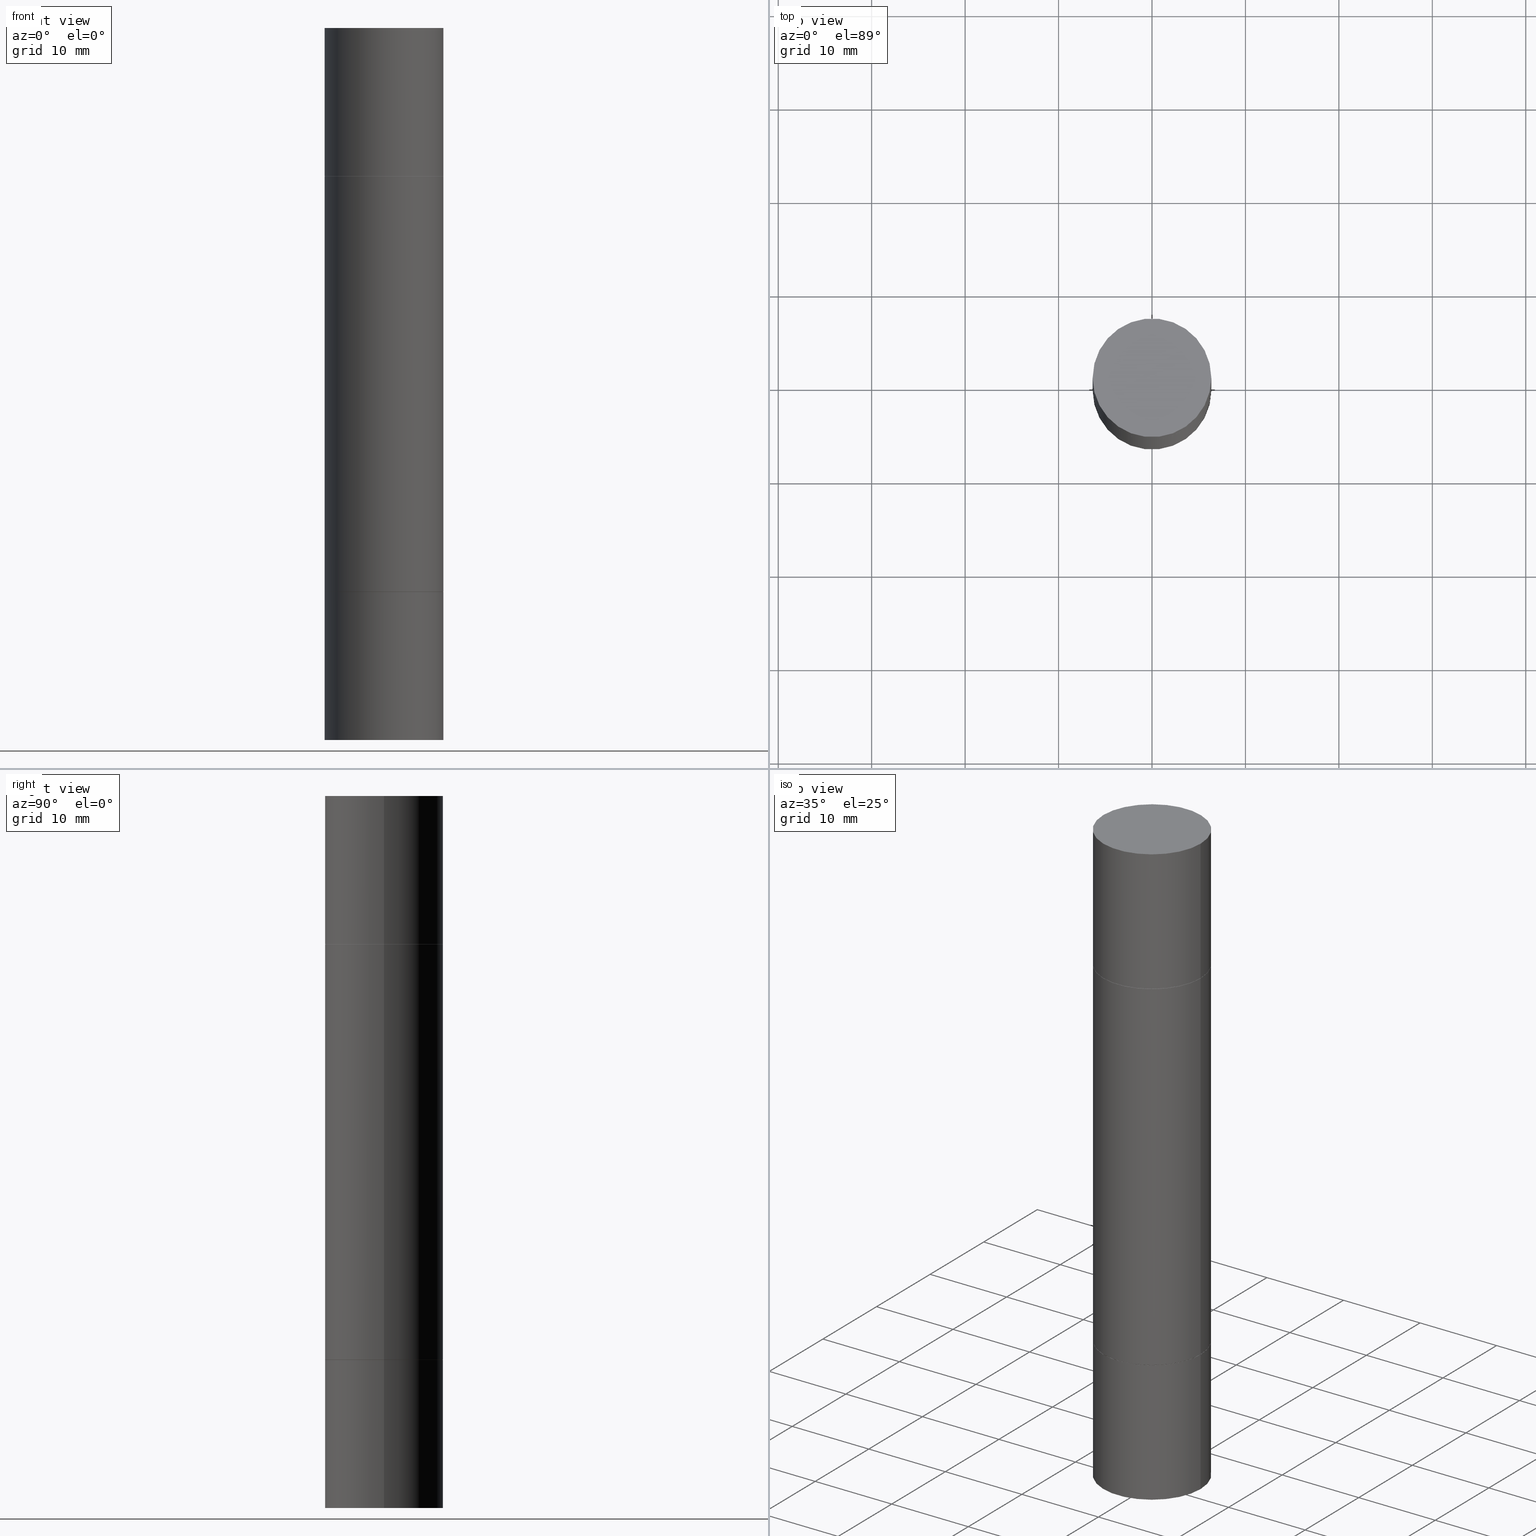
[diagram: canonical four-view strip — front | top / right | iso, engineering-drawing reading convention]
A machine part, canonical four-view strip (front | top / right | iso — engineering-drawing reading convention). The complete STEP part file that produces these views, byte-faithful:
ISO-10303-21;
HEADER;
FILE_DESCRIPTION (( 'STEP AP203' ),
    '1' );
FILE_NAME ('31479.STEP',
    '2024-03-04T15:42:20',
    ( '' ),
    ( '' ),
    'SwSTEP 2.0',
    'SolidWorks 2023',
    '' );
FILE_SCHEMA (( 'CONFIG_CONTROL_DESIGN' ));
ENDSEC;

DATA;
#1 = CARTESIAN_POINT ( 'NONE',  ( 0.2499999999999998335, -1.222229829501391012E-14, -2.999999999999999112 ) ) ;
#2 = DIRECTION ( 'NONE',  ( 2.445468806185136597E-29, 3.492890411551752677E-15, 1.000000000000000000 ) ) ;
#3 = ADVANCED_FACE ( 'NONE', ( #251 ), #569, .T. ) ;
#4 = CARTESIAN_POINT ( 'NONE',  ( 5.807988414689700538E-29, -2.180942898156930788E-15, -0.6249999999999988898 ) ) ;
#5 = CARTESIAN_POINT ( 'NONE',  ( -0.2489999999999999991, -4.709950929187094786E-16, -0.6249999999999988898 ) ) ;
#6 = APPLICATION_CONTEXT ( 'configuration controlled 3d designs of mechanical parts and assemblies' ) ;
#7 = ADVANCED_FACE ( 'NONE', ( #465 ), #305, .F. ) ;
#8 = VECTOR ( 'NONE', #304, 39.37007874015748143 ) ;
#9 = AXIS2_PLACEMENT_3D ( 'NONE', #678, #269, #423 ) ;
#10 = PERSON_AND_ORGANIZATION ( #452, #584 ) ;
#11 = AXIS2_PLACEMENT_3D ( 'NONE', #324, #106, #313 ) ;
#12 = DIRECTION ( 'NONE',  ( -1.000000000000000000, 6.982962677686265922E-15, -4.876176775795935793E-29 ) ) ;
#13 = ORIENTED_EDGE ( 'NONE', *, *, #642, .F. ) ;
#14 = EDGE_CURVE ( 'NONE', #542, #660, #78, .T. ) ;
#15 = AXIS2_PLACEMENT_3D ( 'NONE', #159, #629, #315 ) ;
#16 = DIRECTION ( 'NONE',  ( 2.445468806185136597E-29, 3.492890411551752677E-15, 1.000000000000000000 ) ) ;
#17 = AXIS2_PLACEMENT_3D ( 'NONE', #517, #34, #357 ) ;
#18 = DIRECTION ( 'NONE',  ( 0.000000000000000000, 0.000000000000000000, 1.000000000000000000 ) ) ;
#19 = ORIENTED_EDGE ( 'NONE', *, *, #374, .F. ) ;
#20 = CARTESIAN_POINT ( 'NONE',  ( 0.000000000000000000, -1.047655762559234344E-14, -2.999999999999999112 ) ) ;
#21 = CIRCLE ( 'NONE', #540, 0.2500000000000000000 ) ;
#22 = ORIENTED_EDGE ( 'NONE', *, *, #343, .T. ) ;
#23 = CYLINDRICAL_SURFACE ( 'NONE', #643, 0.2499999999999998335 ) ;
#24 = EDGE_CURVE ( 'NONE', #300, #570, #110, .T. ) ;
#25 = ORIENTED_EDGE ( 'NONE', *, *, #224, .T. ) ;
#26 = EDGE_LOOP ( 'NONE', ( #84, #614, #664, #122 ) ) ;
#27 = ORIENTED_EDGE ( 'NONE', *, *, #149, .F. ) ;
#28 = DIRECTION ( 'NONE',  ( -1.000000000000000000, 6.982962677686265922E-15, -9.839502134516470631E-33 ) ) ;
#29 = APPROVAL_PERSON_ORGANIZATION ( #221, #160, #55 ) ;
#30 = MANIFOLD_SOLID_BREP ( 'Combine1', #449 ) ;
#31 = CIRCLE ( 'NONE', #422, 0.2489999999999999991 ) ;
#32 = MANIFOLD_SOLID_BREP ( 'Mirror1[3]', #151 ) ;
#33 = CARTESIAN_POINT ( 'NONE',  ( 0.000000000000000000, -1.047655762559234344E-14, -2.999999999999999112 ) ) ;
#34 = DIRECTION ( 'NONE',  ( 2.438088387897959769E-29, 3.492890411551753071E-15, 1.000000000000000000 ) ) ;
#35 = ADVANCED_FACE ( 'NONE', ( #674 ), #515, .F. ) ;
#36 = CARTESIAN_POINT ( 'NONE',  ( 5.807988414689700538E-29, -8.292268179752471696E-15, -2.375000000000000000 ) ) ;
#37 = VERTEX_POINT ( 'NONE', #94 ) ;
#38 = EDGE_CURVE ( 'NONE', #334, #178, #467, .T. ) ;
#39 = DIRECTION ( 'NONE',  ( 2.445468806185136597E-29, 3.492890411551752677E-15, 1.000000000000000000 ) ) ;
#40 = DIRECTION ( 'NONE',  ( -2.445468806185136597E-29, 3.491481338843145583E-15, 1.000000000000000000 ) ) ;
#41 = CARTESIAN_POINT ( 'NONE',  ( 5.805542945883514935E-29, -2.184435788568482141E-15, -0.6259999999999990017 ) ) ;
#42 = EDGE_LOOP ( 'NONE', ( #279, #419, #460, #593 ) ) ;
#43 = CARTESIAN_POINT ( 'NONE',  ( 7.336406418555409790E-29, 2.113609062914567177E-18, 1.092739197465705287E-15 ) ) ;
#44 = CARTESIAN_POINT ( 'NONE',  ( 0.2489999999999999991, -3.919700604900811057E-15, -0.6249999999999988898 ) ) ;
#45 = CONICAL_SURFACE ( 'NONE', #439, 0.2489999999999999991, 0.7853981633974141952 ) ;
#46 = VERTEX_POINT ( 'NONE', #549 ) ;
#47 = AXIS2_PLACEMENT_3D ( 'NONE', #416, #519, #350 ) ;
#48 = LINE ( 'NONE', #676, #599 ) ;
#49 = DIRECTION ( 'NONE',  ( 1.000000000000000000, -6.982962677686266711E-15, 0.000000000000000000 ) ) ;
#50 = CC_DESIGN_PERSON_AND_ORGANIZATION_ASSIGNMENT ( #64, #333, ( #101 ) ) ;
#51 = CARTESIAN_POINT ( 'NONE',  ( 5.807988414689700538E-29, -8.292268179752471696E-15, -2.375000000000000000 ) ) ;
#52 = DIRECTION ( 'NONE',  ( 1.000000000000000000, -6.982962677686266711E-15, 0.000000000000000000 ) ) ;
#53 = DIRECTION ( 'NONE',  ( 1.000000000000000000, -6.982962677686266711E-15, 4.876176775795935793E-29 ) ) ;
#54 = CARTESIAN_POINT ( 'NONE',  ( 5.807988414689700538E-29, -8.292268179752471696E-15, -2.375000000000000000 ) ) ;
#55 = APPROVAL_ROLE ( '' ) ;
#56 = DIRECTION ( 'NONE',  ( -2.445468806185136877E-29, -3.492890411551753071E-15, -1.000000000000000000 ) ) ;
#57 = ADVANCED_FACE ( 'NONE', ( #127 ), #75, .F. ) ;
#58 = DIRECTION ( 'NONE',  ( -2.445468806185136597E-29, -3.492890411551752677E-15, -1.000000000000000000 ) ) ;
#59 = APPROVAL ( #274, 'UNSPECIFIED' ) ;
#60 = CARTESIAN_POINT ( 'NONE',  ( 5.805542945883514935E-29, -2.184435788568482141E-15, -0.6259999999999990017 ) ) ;
#61 = PERSON_AND_ORGANIZATION ( #452, #584 ) ;
#62 = DIRECTION ( 'NONE',  ( -2.445468806185136877E-29, 3.491481338843145188E-15, 1.000000000000000000 ) ) ;
#63 = CLOSED_SHELL ( 'NONE', ( #527, #378, #332, #488 ) ) ;
#64 = PERSON_AND_ORGANIZATION ( #452, #584 ) ;
#65 = CIRCLE ( 'NONE', #590, 0.2500000000000000000 ) ;
#66 = DIRECTION ( 'NONE',  ( -2.445468806185136877E-29, -3.492890411551753071E-15, -1.000000000000000000 ) ) ;
#67 = DIRECTION ( 'NONE',  ( 1.000000000000000000, -6.982962677686266711E-15, 0.000000000000000000 ) ) ;
#68 = CIRCLE ( 'NONE', #307, 0.2500000000000000000 ) ;
#69 = PRODUCT_DEFINITION ( 'UNKNOWN', '', #101, #393 ) ;
#70 = CARTESIAN_POINT ( 'NONE',  ( 3.668203209277703774E-29, -5.237222008264716599E-15, -1.499999999999999556 ) ) ;
#71 = CIRCLE ( 'NONE', #424, 0.2500000000000000000 ) ;
#72 = COORDINATED_UNIVERSAL_TIME_OFFSET ( 5, 0, .BEHIND. ) ;
#73 = ORIENTED_EDGE ( 'NONE', *, *, #428, .T. ) ;
#74 = DIRECTION ( 'NONE',  ( 1.000000000000000000, -6.982962677686265922E-15, 9.839502134516470631E-33 ) ) ;
#75 = PLANE ( 'NONE',  #632 ) ;
#76 = DIRECTION ( 'NONE',  ( 0.000000000000000000, 1.000000000000000000, -3.278217592397118229E-15 ) ) ;
#77 = EDGE_CURVE ( 'NONE', #662, #46, #223, .T. ) ;
#78 = CIRCLE ( 'NONE', #47, 0.2500000000000000000 ) ;
#79 = ORIENTED_EDGE ( 'NONE', *, *, #24, .T. ) ;
#80 = CARTESIAN_POINT ( 'NONE',  ( 0.000000000000000000, -1.047655762559234344E-14, -2.999999999999999112 ) ) ;
#81 = CALENDAR_DATE ( 2024, 4, 3 ) ;
#82 = EDGE_CURVE ( 'NONE', #597, #356, #499, .T. ) ;
#83 = EDGE_LOOP ( 'NONE', ( #454, #190, #552, #563 ) ) ;
#84 = ORIENTED_EDGE ( 'NONE', *, *, #530, .F. ) ;
#85 = ORIENTED_EDGE ( 'NONE', *, *, #116, .T. ) ;
#86 = ORIENTED_EDGE ( 'NONE', *, *, #109, .F. ) ;
#87 = DIRECTION ( 'NONE',  ( 2.438088387897959769E-29, 3.492890411551753071E-15, 1.000000000000000000 ) ) ;
#88 = AXIS2_PLACEMENT_3D ( 'NONE', #70, #228, #76 ) ;
#89 = ADVANCED_FACE ( 'NONE', ( #111 ), #539, .T. ) ;
#90 = DIRECTION ( 'NONE',  ( 1.000000000000000000, -6.982962677686266711E-15, 0.000000000000000000 ) ) ;
#91 = ORIENTED_EDGE ( 'NONE', *, *, #619, .T. ) ;
#92 = FACE_OUTER_BOUND ( 'NONE', #246, .T. ) ;
#93 = CARTESIAN_POINT ( 'NONE',  ( 0.000000000000000000, -1.047655762559234344E-14, -2.999999999999999112 ) ) ;
#94 = CARTESIAN_POINT ( 'NONE',  ( -0.2489999999999999991, -4.709950929187094786E-16, -0.6249999999999988898 ) ) ;
#95 = VERTEX_POINT ( 'NONE', #546 ) ;
#96 = CARTESIAN_POINT ( 'NONE',  ( 7.336406418555409790E-29, 2.113609062914567177E-18, 1.092739197465705287E-15 ) ) ;
#97 = ORIENTED_EDGE ( 'NONE', *, *, #224, .F. ) ;
#98 = AXIS2_PLACEMENT_3D ( 'NONE', #43, #39, #295 ) ;
#99 = CARTESIAN_POINT ( 'NONE',  ( 1.745740669421639647E-15, 0.2500000000000000000, 5.463695987328526437E-16 ) ) ;
#100 = EDGE_CURVE ( 'NONE', #186, #383, #627, .T. ) ;
#101 = PRODUCT_DEFINITION_FORMATION_WITH_SPECIFIED_SOURCE ( 'ANY', '', #579, .NOT_KNOWN. ) ;
#102 = AXIS2_PLACEMENT_3D ( 'NONE', #322, #533, #270 ) ;
#103 = FACE_OUTER_BOUND ( 'NONE', #275, .T. ) ;
#104 = FACE_OUTER_BOUND ( 'NONE', #26, .T. ) ;
#105 = CYLINDRICAL_SURFACE ( 'NONE', #265, 0.2499999999999998335 ) ;
#106 = DIRECTION ( 'NONE',  ( 2.445468806185136597E-29, 3.492890411551752677E-15, 1.000000000000000000 ) ) ;
#107 = EDGE_CURVE ( 'NONE', #360, #516, #561, .T. ) ;
#108 = CIRCLE ( 'NONE', #451, 0.2500000000000000000 ) ;
#109 = EDGE_CURVE ( 'NONE', #405, #319, #31, .T. ) ;
#110 = CIRCLE ( 'NONE', #368, 0.2500000000000000000 ) ;
#111 = FACE_OUTER_BOUND ( 'NONE', #248, .T. ) ;
#112 = DIRECTION ( 'NONE',  ( 0.000000000000000000, 1.000000000000000000, -3.278217592397118229E-15 ) ) ;
#113 = DIRECTION ( 'NONE',  ( 1.000000000000000000, -6.982962677686269866E-15, 0.000000000000000000 ) ) ;
#114 = DIRECTION ( 'NONE',  ( -2.445468806185136597E-29, -3.492890411551752677E-15, -1.000000000000000000 ) ) ;
#115 = DATE_AND_TIME ( #631, #421 ) ;
#116 = EDGE_CURVE ( 'NONE', #356, #178, #603, .T. ) ;
#117 = DIRECTION ( 'NONE',  ( 1.000000000000000000, -6.982962677686265922E-15, 9.839502134516470631E-33 ) ) ;
#118 = ADVANCED_FACE ( 'NONE', ( #504 ), #445, .T. ) ;
#119 = APPROVAL_PERSON_ORGANIZATION ( #61, #59, #432 ) ;
#120 = AXIS2_PLACEMENT_3D ( 'NONE', #147, #572, #53 ) ;
#121 = COORDINATED_UNIVERSAL_TIME_OFFSET ( 5, 0, .BEHIND. ) ;
#122 = ORIENTED_EDGE ( 'NONE', *, *, #200, .F. ) ;
#123 = EDGE_LOOP ( 'NONE', ( #494, #556, #25, #574 ) ) ;
#124 = ADVANCED_FACE ( 'NONE', ( #550 ), #23, .T. ) ;
#125 = ORIENTED_EDGE ( 'NONE', *, *, #341, .F. ) ;
#126 = EDGE_CURVE ( 'NONE', #95, #662, #21, .T. ) ;
#127 = FACE_OUTER_BOUND ( 'NONE', #195, .T. ) ;
#128 = EDGE_CURVE ( 'NONE', #503, #650, #68, .T. ) ;
#129 = VECTOR ( 'NONE', #312, 39.37007874015748143 ) ;
#130 = ORIENTED_EDGE ( 'NONE', *, *, #343, .F. ) ;
#131 = ORIENTED_EDGE ( 'NONE', *, *, #653, .F. ) ;
#132 = DIRECTION ( 'NONE',  ( 1.000000000000000000, -6.982962677686269866E-15, 0.000000000000000000 ) ) ;
#133 = ORIENTED_EDGE ( 'NONE', *, *, #638, .F. ) ;
#134 = ORIENTED_EDGE ( 'NONE', *, *, #568, .T. ) ;
#135 = CARTESIAN_POINT ( 'NONE',  ( 0.2500000000000000000, -1.222018468595100303E-14, -3.000000000000000444 ) ) ;
#136 = DIRECTION ( 'NONE',  ( -2.445468806185136597E-29, -3.492890411551752677E-15, -1.000000000000000000 ) ) ;
#137 = DIRECTION ( 'NONE',  ( -2.438088387897960049E-29, 3.491481338843145188E-15, 1.000000000000000000 ) ) ;
#138 = CLOSED_SHELL ( 'NONE', ( #124, #203, #481, #253, #235, #173 ) ) ;
#139 = ORIENTED_EDGE ( 'NONE', *, *, #474, .T. ) ;
#140 = CARTESIAN_POINT ( 'NONE',  ( 1.745740669421624462E-15, 0.2499999999999978073, -0.6249999999999997780 ) ) ;
#141 = CARTESIAN_POINT ( 'NONE',  ( 1.745740669421624462E-15, 0.2499999999999978073, -0.6249999999999997780 ) ) ;
#142 = ORIENTED_EDGE ( 'NONE', *, *, #675, .T. ) ;
#143 = DIRECTION ( 'NONE',  ( -0.7071067811865232589, 7.493145998870265808E-15, 0.7071067811865715536 ) ) ;
#144 = DIRECTION ( 'NONE',  ( 1.000000000000000000, -6.982962677686266711E-15, 0.000000000000000000 ) ) ;
#145 = ADVANCED_BREP_SHAPE_REPRESENTATION ( '31479', ( #263, #491, #32, #497, #30, #538 ), #366 ) ;
#146 = ORIENTED_EDGE ( 'NONE', *, *, #394, .T. ) ;
#147 = CARTESIAN_POINT ( 'NONE',  ( 0.000000000000000000, 0.000000000000000000, 0.000000000000000000 ) ) ;
#148 = CYLINDRICAL_SURFACE ( 'NONE', #453, 0.2499999999999998335 ) ;
#149 = EDGE_CURVE ( 'NONE', #570, #383, #255, .T. ) ;
#150 = ORIENTED_EDGE ( 'NONE', *, *, #596, .T. ) ;
#151 = CLOSED_SHELL ( 'NONE', ( #118, #548, #537, #209 ) ) ;
#152 = DIRECTION ( 'NONE',  ( -2.445468806185136877E-29, -3.492890411551753071E-15, -1.000000000000000000 ) ) ;
#153 = EDGE_CURVE ( 'NONE', #300, #186, #358, .T. ) ;
#154 = CIRCLE ( 'NONE', #318, 0.2500000000000000000 ) ;
#155 = CIRCLE ( 'NONE', #450, 0.2489999999999999991 ) ;
#156 = CONICAL_SURFACE ( 'NONE', #478, 0.2489999999999999991, 0.7853981633974141952 ) ;
#157 = VECTOR ( 'NONE', #56, 39.37007874015748143 ) ;
#158 = DIRECTION ( 'NONE',  ( -2.445468806185136597E-29, 3.491481338843145583E-15, 1.000000000000000000 ) ) ;
#159 = CARTESIAN_POINT ( 'NONE',  ( 0.000000000000000000, 0.000000000000000000, 0.000000000000000000 ) ) ;
#160 = APPROVAL ( #226, 'UNSPECIFIED' ) ;
#161 = DIRECTION ( 'NONE',  ( -2.445468806185136597E-29, -3.492890411551752677E-15, -1.000000000000000000 ) ) ;
#162 = EDGE_CURVE ( 'NONE', #597, #334, #623, .T. ) ;
#163 = CARTESIAN_POINT ( 'NONE',  ( -0.2500000000000000000, 6.257098548958748880E-16, -0.6249999999999988898 ) ) ;
#164 = FACE_OUTER_BOUND ( 'NONE', #191, .T. ) ;
#165 = DIRECTION ( 'NONE',  ( 1.000000000000000000, -6.982962677686266711E-15, 0.000000000000000000 ) ) ;
#166 = AXIS2_PLACEMENT_3D ( 'NONE', #96, #414, #165 ) ;
#167 = DIRECTION ( 'NONE',  ( 0.000000000000000000, 1.000000000000000000, -3.492185875197449524E-15 ) ) ;
#168 = CONICAL_SURFACE ( 'NONE', #413, 0.2489999999999999991, 0.7853981633974141952 ) ;
#169 = FACE_OUTER_BOUND ( 'NONE', #238, .T. ) ;
#170 = FACE_OUTER_BOUND ( 'NONE', #83, .T. ) ;
#171 = DIRECTION ( 'NONE',  ( -2.445468806185136597E-29, -3.492890411551752677E-15, -1.000000000000000000 ) ) ;
#172 = CARTESIAN_POINT ( 'NONE',  ( 0.2489999999999999991, -3.919700604900811057E-15, -0.6249999999999988898 ) ) ;
#173 = ADVANCED_FACE ( 'NONE', ( #415 ), #148, .T. ) ;
#174 = EDGE_CURVE ( 'NONE', #516, #360, #208, .T. ) ;
#175 = CALENDAR_DATE ( 2024, 4, 3 ) ;
#176 = CARTESIAN_POINT ( 'NONE',  ( 5.807988414689700538E-29, -8.292268179752471696E-15, -2.375000000000000000 ) ) ;
#177 = DIRECTION ( 'NONE',  ( 1.000000000000000000, 0.000000000000000000, 0.000000000000000000 ) ) ;
#178 = VERTEX_POINT ( 'NONE', #306 ) ;
#179 = DIRECTION ( 'NONE',  ( 1.000000000000000000, -6.982962677686270655E-15, 0.000000000000000000 ) ) ;
#180 = VECTOR ( 'NONE', #291, 39.37007874015748854 ) ;
#181 = DIRECTION ( 'NONE',  ( 2.445468806185136597E-29, 3.492890411551752677E-15, 1.000000000000000000 ) ) ;
#182 = LENGTH_MEASURE_WITH_UNIT ( LENGTH_MEASURE( 0.02539999999999999897 ), #278 );
#183 = EDGE_CURVE ( 'NONE', #660, #503, #48, .T. ) ;
#184 = ORIENTED_EDGE ( 'NONE', *, *, #14, .F. ) ;
#185 = CIRCLE ( 'NONE', #529, 0.2489999999999999991 ) ;
#186 = VERTEX_POINT ( 'NONE', #309 ) ;
#187 = DIRECTION ( 'NONE',  ( 2.445468806185136597E-29, 3.492890411551752677E-15, 1.000000000000000000 ) ) ;
#188 = DATE_TIME_ROLE ( 'classification_date' ) ;
#189 = AXIS2_PLACEMENT_3D ( 'NONE', #4, #483, #433 ) ;
#190 = ORIENTED_EDGE ( 'NONE', *, *, #394, .F. ) ;
#191 = EDGE_LOOP ( 'NONE', ( #142, #194 ) ) ;
#192 = PLANE ( 'NONE',  #314 ) ;
#193 = CIRCLE ( 'NONE', #98, 0.2500000000000000000 ) ;
#194 = ORIENTED_EDGE ( 'NONE', *, *, #100, .T. ) ;
#195 = EDGE_LOOP ( 'NONE', ( #466, #236 ) ) ;
#196 = LINE ( 'NONE', #617, #626 ) ;
#197 = CARTESIAN_POINT ( 'NONE',  ( 5.807988414689700538E-29, -2.180942898156930788E-15, -0.6249999999999988898 ) ) ;
#198 = CC_DESIGN_APPROVAL ( #160, ( #69 ) ) ;
#199 = AXIS2_PLACEMENT_3D ( 'NONE', #362, #40, #573 ) ;
#200 = EDGE_CURVE ( 'NONE', #447, #46, #671, .T. ) ;
#201 = ORIENTED_EDGE ( 'NONE', *, *, #446, .F. ) ;
#202 = LINE ( 'NONE', #564, #669 ) ;
#203 = ADVANCED_FACE ( 'NONE', ( #103 ), #168, .T. ) ;
#204 = ORIENTED_EDGE ( 'NONE', *, *, #162, .F. ) ;
#205 = DIRECTION ( 'NONE',  ( 1.000000000000000000, -6.982962677686266711E-15, 0.000000000000000000 ) ) ;
#206 = FACE_OUTER_BOUND ( 'NONE', #207, .T. ) ;
#207 = EDGE_LOOP ( 'NONE', ( #130, #545, #644, #500 ) ) ;
#208 = CIRCLE ( 'NONE', #199, 0.2500000000000000000 ) ;
#209 = ADVANCED_FACE ( 'NONE', ( #206 ), #262, .T. ) ;
#210 = CC_DESIGN_DATE_AND_TIME_ASSIGNMENT ( #115, #592, ( #69 ) ) ;
#211 = DIRECTION ( 'NONE',  ( -0.7071067811865232589, 2.381258160591016070E-15, -0.7071067811865715536 ) ) ;
#212 = CARTESIAN_POINT ( 'NONE',  ( -0.2500000000000000000, -7.606999258740704349E-15, -2.375000000000000000 ) ) ;
#213 = CARTESIAN_POINT ( 'NONE',  ( -0.2500000000000000000, 6.257098548958748880E-16, 1.092739197465709232E-15 ) ) ;
#214 = CARTESIAN_POINT ( 'NONE',  ( 0.2500000000000000000, -1.745740669421566678E-15, 1.219044193948983948E-29 ) ) ;
#215 = PLANE ( 'NONE',  #9 ) ;
#216 = PLANE ( 'NONE',  #567 ) ;
#217 = PRODUCT_RELATED_PRODUCT_CATEGORY ( 'detail', '', ( #579 ) ) ;
#218 = CARTESIAN_POINT ( 'NONE',  ( -0.2500000000000000000, -3.522097508821832131E-15, -2.374000000000000110 ) ) ;
#219 = CARTESIAN_POINT ( 'NONE',  ( 5.807988414689700538E-29, -8.292268179752471696E-15, -2.375000000000000000 ) ) ;
#220 = CONICAL_SURFACE ( 'NONE', #242, 0.2489999999999999991, 0.7853981633974141952 ) ;
#221 = PERSON_AND_ORGANIZATION ( #452, #584 ) ;
#222 = LINE ( 'NONE', #634, #272 ) ;
#223 = LINE ( 'NONE', #214, #576 ) ;
#224 = EDGE_CURVE ( 'NONE', #443, #391, #551, .T. ) ;
#225 = CARTESIAN_POINT ( 'NONE',  ( -0.2500000000000000000, 6.257098548958748880E-16, 1.092739197465709232E-15 ) ) ;
#226 = APPROVAL_STATUS ( 'not_yet_approved' ) ;
#227 = FACE_OUTER_BOUND ( 'NONE', #123, .T. ) ;
#228 = DIRECTION ( 'NONE',  ( -0.000000000000000000, -3.492185875197449130E-15, -1.000000000000000000 ) ) ;
#229 = APPLICATION_PROTOCOL_DEFINITION ( 'international standard', 'config_control_design', 1994, #310 ) ;
#230 = EDGE_LOOP ( 'NONE', ( #511, #239, #150, #387 ) ) ;
#231 = DIRECTION ( 'NONE',  ( 1.000000000000000000, -6.982962677686266711E-15, 0.000000000000000000 ) ) ;
#232 = AXIS2_PLACEMENT_3D ( 'NONE', #425, #136, #205 ) ;
#233 = CALENDAR_DATE ( 2024, 4, 3 ) ;
#234 = CONICAL_SURFACE ( 'NONE', #398, 0.2489999999999999991, 0.7853981633974141952 ) ;
#235 = ADVANCED_FACE ( 'NONE', ( #170 ), #45, .T. ) ;
#236 = ORIENTED_EDGE ( 'NONE', *, *, #667, .T. ) ;
#237 = CIRCLE ( 'NONE', #607, 0.2489999999999999991 ) ;
#238 = EDGE_LOOP ( 'NONE', ( #241, #448 ) ) ;
#239 = ORIENTED_EDGE ( 'NONE', *, *, #341, .T. ) ;
#240 = ORIENTED_EDGE ( 'NONE', *, *, #619, .F. ) ;
#241 = ORIENTED_EDGE ( 'NONE', *, *, #374, .T. ) ;
#242 = AXIS2_PLACEMENT_3D ( 'NONE', #505, #604, #132 ) ;
#243 = CARTESIAN_POINT ( 'NONE',  ( 7.336406418555409790E-29, 2.113609062914567177E-18, 1.092739197465705287E-15 ) ) ;
#244 = FACE_OUTER_BOUND ( 'NONE', #616, .T. ) ;
#245 = EDGE_LOOP ( 'NONE', ( #656, #406 ) ) ;
#246 = EDGE_LOOP ( 'NONE', ( #621, #506, #19, #348 ) ) ;
#247 = CARTESIAN_POINT ( 'NONE',  ( -0.2499999999999998335, -8.761433126149462132E-15, -2.999999999999999112 ) ) ;
#248 = EDGE_LOOP ( 'NONE', ( #397, #557, #412, #601 ) ) ;
#249 = PLANE ( 'NONE',  #496 ) ;
#250 = CARTESIAN_POINT ( 'NONE',  ( 0.000000000000000000, -1.047655762559234344E-14, -2.999999999999999112 ) ) ;
#251 = FACE_OUTER_BOUND ( 'NONE', #605, .T. ) ;
#252 = ORIENTED_EDGE ( 'NONE', *, *, #256, .F. ) ;
#253 = ADVANCED_FACE ( 'NONE', ( #490 ), #436, .F. ) ;
#254 = CARTESIAN_POINT ( 'NONE',  ( 0.2500000000000000000, -1.743627060358652092E-15, 1.092739197465705287E-15 ) ) ;
#255 = LINE ( 'NONE', #1, #129 ) ;
#256 = EDGE_CURVE ( 'NONE', #334, #516, #389, .T. ) ;
#257 = AXIS2_PLACEMENT_3D ( 'NONE', #141, #355, #565 ) ;
#258 = VERTEX_POINT ( 'NONE', #225 ) ;
#259 = ORIENTED_EDGE ( 'NONE', *, *, #149, .T. ) ;
#260 = CIRCLE ( 'NONE', #189, 0.2500000000000000000 ) ;
#261 = DIRECTION ( 'NONE',  ( 1.000000000000000000, -6.982962677686266711E-15, 0.000000000000000000 ) ) ;
#262 = CYLINDRICAL_SURFACE ( 'NONE', #340, 0.2500000000000000000 ) ;
#263 = MANIFOLD_SOLID_BREP ( 'Body-Move/Copy2[1]', #63 ) ;
#264 = DIRECTION ( 'NONE',  ( 2.445468806185136597E-29, 3.492890411551752677E-15, 1.000000000000000000 ) ) ;
#265 = AXIS2_PLACEMENT_3D ( 'NONE', #677, #646, #276 ) ;
#266 = CARTESIAN_POINT ( 'NONE',  ( 0.2489999999999999991, -3.919700604900811057E-15, -0.6249999999999988898 ) ) ;
#267 = DIRECTION ( 'NONE',  ( 2.438088387897960049E-29, -3.491481338843145188E-15, -1.000000000000000000 ) ) ;
#268 = VECTOR ( 'NONE', #543, 39.37007874015748854 ) ;
#269 = DIRECTION ( 'NONE',  ( 2.438088387897960049E-29, -3.491481338843145188E-15, -1.000000000000000000 ) ) ;
#270 = DIRECTION ( 'NONE',  ( 1.000000000000000000, -6.982962677686266711E-15, 0.000000000000000000 ) ) ;
#271 = ADVANCED_FACE ( 'NONE', ( #493 ), #156, .T. ) ;
#272 = VECTOR ( 'NONE', #66, 39.37007874015748143 ) ;
#273 = CARTESIAN_POINT ( 'NONE',  ( 0.000000000000000000, 0.000000000000000000, 0.000000000000000000 ) ) ;
#274 = APPROVAL_STATUS ( 'not_yet_approved' ) ;
#275 = EDGE_LOOP ( 'NONE', ( #624, #73, #79, #471 ) ) ;
#276 = DIRECTION ( 'NONE',  ( 1.000000000000000000, -6.982962677686267499E-15, 0.000000000000000000 ) ) ;
#277 = DIRECTION ( 'NONE',  ( -2.445468806185136877E-29, -3.492890411551753071E-15, -1.000000000000000000 ) ) ;
#278 =( LENGTH_UNIT ( ) NAMED_UNIT ( * ) SI_UNIT ( $, .METRE. ) );
#279 = ORIENTED_EDGE ( 'NONE', *, *, #116, .F. ) ;
#280 = ADVANCED_FACE ( 'NONE', ( #668 ), #105, .T. ) ;
#281 = CIRCLE ( 'NONE', #652, 0.2499999999999998335 ) ;
#282 = ORIENTED_EDGE ( 'NONE', *, *, #24, .F. ) ;
#283 = AXIS2_PLACEMENT_3D ( 'NONE', #641, #181, #326 ) ;
#284 = CARTESIAN_POINT ( 'NONE',  ( -0.2489999999999999991, -4.726788967118193123E-16, -0.6249999999999988898 ) ) ;
#285 = EDGE_LOOP ( 'NONE', ( #201, #97 ) ) ;
#286 = ORIENTED_EDGE ( 'NONE', *, *, #107, .T. ) ;
#287 = ADVANCED_FACE ( 'NONE', ( #498 ), #220, .T. ) ;
#288 = APPROVAL_ROLE ( '' ) ;
#289 = ORIENTED_EDGE ( 'NONE', *, *, #642, .T. ) ;
#290 = DIRECTION ( 'NONE',  ( -2.445468806185136877E-29, 3.491481338843145188E-15, 1.000000000000000000 ) ) ;
#291 = DIRECTION ( 'NONE',  ( -0.7071067811865232589, 2.381258160591016070E-15, -0.7071067811865715536 ) ) ;
#292 = CONICAL_SURFACE ( 'NONE', #232, 0.2489999999999999991, 0.7853981633974141952 ) ;
#293 = EDGE_LOOP ( 'NONE', ( #184, #22, #289, #547 ) ) ;
#294 = LOCAL_TIME ( 10, 42, 20.00000000000000000, #440 ) ;
#295 = DIRECTION ( 'NONE',  ( 1.000000000000000000, -6.982962677686266711E-15, 0.000000000000000000 ) ) ;
#296 = PERSON_AND_ORGANIZATION ( #452, #584 ) ;
#297 = DIRECTION ( 'NONE',  ( 1.000000000000000000, -6.982962677686265922E-15, 4.876176775795935793E-29 ) ) ;
#298 = PRODUCT_DEFINITION_SHAPE ( 'NONE', 'NONE',  #69 ) ;
#299 = FACE_OUTER_BOUND ( 'NONE', #245, .T. ) ;
#300 = VERTEX_POINT ( 'NONE', #613 ) ;
#301 = EDGE_LOOP ( 'NONE', ( #282, #610, #655, #27 ) ) ;
#302 = ADVANCED_FACE ( 'NONE', ( #244 ), #234, .T. ) ;
#303 = DIRECTION ( 'NONE',  ( 1.000000000000000000, -6.982962677686266711E-15, 0.000000000000000000 ) ) ;
#304 = DIRECTION ( 'NONE',  ( -2.445468806185136877E-29, -3.492890411551753071E-15, -1.000000000000000000 ) ) ;
#305 = PLANE ( 'NONE',  #409 ) ;
#306 = CARTESIAN_POINT ( 'NONE',  ( -0.2500000000000000000, -4.693112891255996450E-16, -0.6259999999999990017 ) ) ;
#307 = AXIS2_PLACEMENT_3D ( 'NONE', #553, #347, #469 ) ;
#308 = ORIENTED_EDGE ( 'NONE', *, *, #602, .T. ) ;
#309 = CARTESIAN_POINT ( 'NONE',  ( -0.2499999999999998335, -1.995704398973716874E-15, -1.499999999999999556 ) ) ;
#310 = APPLICATION_CONTEXT ( 'configuration controlled 3d designs of mechanical parts and assemblies' ) ;
#311 = CARTESIAN_POINT ( 'NONE',  ( 5.807988414689700538E-29, -8.292268179752471696E-15, -2.375000000000000000 ) ) ;
#312 = DIRECTION ( 'NONE',  ( -2.445468806185136877E-29, -3.492890411551753071E-15, -1.000000000000000000 ) ) ;
#313 = DIRECTION ( 'NONE',  ( 1.000000000000000000, -6.982962677686266711E-15, 0.000000000000000000 ) ) ;
#314 = AXIS2_PLACEMENT_3D ( 'NONE', #140, #87, #559 ) ;
#315 = DIRECTION ( 'NONE',  ( 1.000000000000000000, -6.982962677686266711E-15, 4.876176775795935793E-29 ) ) ;
#316 = CARTESIAN_POINT ( 'NONE',  ( 0.2500000000000000000, -1.743627060358652092E-15, 1.092739197465705287E-15 ) ) ;
#317 = PLANE ( 'NONE',  #487 ) ;
#318 = AXIS2_PLACEMENT_3D ( 'NONE', #566, #403, #606 ) ;
#319 = VERTEX_POINT ( 'NONE', #585 ) ;
#320 = AXIS2_PLACEMENT_3D ( 'NONE', #594, #335, #74 ) ;
#321 = MECHANICAL_CONTEXT ( 'NONE', #310, 'mechanical' ) ;
#322 = CARTESIAN_POINT ( 'NONE',  ( 5.805542945883514935E-29, -8.288776698413628688E-15, -2.374000000000000110 ) ) ;
#323 = PERSON_AND_ORGANIZATION ( #452, #584 ) ;
#324 = CARTESIAN_POINT ( 'NONE',  ( 5.807988414689700538E-29, -2.180942898156930788E-15, -0.6249999999999988898 ) ) ;
#325 = PERSON_AND_ORGANIZATION ( #452, #584 ) ;
#326 = DIRECTION ( 'NONE',  ( 1.000000000000000000, -6.982962677686266711E-15, 0.000000000000000000 ) ) ;
#327 = AXIS2_PLACEMENT_3D ( 'NONE', #520, #2, #303 ) ;
#328 =( CONVERSION_BASED_UNIT ( 'INCH', #182 ) LENGTH_UNIT ( ) NAMED_UNIT ( #475 ) );
#329 = EDGE_LOOP ( 'NONE', ( #146, #139 ) ) ;
#330 = CARTESIAN_POINT ( 'NONE',  ( 0.000000000000000000, -1.047655762559234344E-14, -2.999999999999999112 ) ) ;
#331 = CC_DESIGN_PERSON_AND_ORGANIZATION_ASSIGNMENT ( #639, #544, ( #69 ) ) ;
#332 = ADVANCED_FACE ( 'NONE', ( #169 ), #317, .F. ) ;
#333 = PERSON_AND_ORGANIZATION_ROLE ( 'design_supplier' ) ;
#334 = VERTEX_POINT ( 'NONE', #435 ) ;
#335 = DIRECTION ( 'NONE',  ( -2.438088387897959769E-29, -3.492890411551753071E-15, -1.000000000000000000 ) ) ;
#336 = CARTESIAN_POINT ( 'NONE',  ( 0.000000000000000000, -1.047655762559234344E-14, -2.999999999999999112 ) ) ;
#337 = APPROVAL ( #404, 'UNSPECIFIED' ) ;
#338 = ORIENTED_EDGE ( 'NONE', *, *, #128, .F. ) ;
#339 = AXIS2_PLACEMENT_3D ( 'NONE', #20, #441, #648 ) ;
#340 = AXIS2_PLACEMENT_3D ( 'NONE', #250, #464, #666 ) ;
#341 = EDGE_CURVE ( 'NONE', #319, #405, #185, .T. ) ;
#342 = AXIS2_PLACEMENT_3D ( 'NONE', #311, #158, #261 ) ;
#343 = EDGE_CURVE ( 'NONE', #542, #650, #222, .T. ) ;
#344 = VERTEX_POINT ( 'NONE', #172 ) ;
#345 = ADVANCED_FACE ( 'NONE', ( #227 ), #637, .T. ) ;
#346 = ORIENTED_EDGE ( 'NONE', *, *, #126, .F. ) ;
#347 = DIRECTION ( 'NONE',  ( 2.445468806185136597E-29, 3.492890411551752677E-15, 1.000000000000000000 ) ) ;
#348 = ORIENTED_EDGE ( 'NONE', *, *, #77, .F. ) ;
#349 = DIRECTION ( 'NONE',  ( 1.000000000000000000, -6.982962677686266711E-15, 0.000000000000000000 ) ) ;
#350 = DIRECTION ( 'NONE',  ( 1.000000000000000000, -6.982962677686266711E-15, 0.000000000000000000 ) ) ;
#351 = CC_DESIGN_APPROVAL ( #59, ( #101 ) ) ;
#352 = ORIENTED_EDGE ( 'NONE', *, *, #354, .T. ) ;
#353 = CYLINDRICAL_SURFACE ( 'NONE', #120, 0.2500000000000000000 ) ;
#354 = EDGE_CURVE ( 'NONE', #589, #391, #388, .T. ) ;
#355 = DIRECTION ( 'NONE',  ( 2.438088387897959769E-29, 3.492890411551753071E-15, 1.000000000000000000 ) ) ;
#356 = VERTEX_POINT ( 'NONE', #5 ) ;
#357 = DIRECTION ( 'NONE',  ( -1.000000000000000000, 6.982962677686265922E-15, -9.839502134516470631E-33 ) ) ;
#358 = LINE ( 'NONE', #420, #8 ) ;
#359 = EDGE_LOOP ( 'NONE', ( #86, #125 ) ) ;
#360 = VERTEX_POINT ( 'NONE', #218 ) ;
#361 = FACE_OUTER_BOUND ( 'NONE', #521, .T. ) ;
#362 = CARTESIAN_POINT ( 'NONE',  ( 5.805542945883514935E-29, -8.288776698413628688E-15, -2.374000000000000110 ) ) ;
#363 = CARTESIAN_POINT ( 'NONE',  ( 5.805542945883514935E-29, -2.184435788568482141E-15, -0.6259999999999990017 ) ) ;
#364 = CLOSED_SHELL ( 'NONE', ( #345, #635, #35, #3 ) ) ;
#365 = DIRECTION ( 'NONE',  ( -2.445468806185136597E-29, 3.491481338843145583E-15, 1.000000000000000000 ) ) ;
#366 =( GEOMETRIC_REPRESENTATION_CONTEXT ( 3 ) GLOBAL_UNCERTAINTY_ASSIGNED_CONTEXT ( ( #380 ) ) GLOBAL_UNIT_ASSIGNED_CONTEXT ( ( #328, #386, #633 ) ) REPRESENTATION_CONTEXT ( 'NONE', 'WORKASPACE' ) );
#367 = EDGE_CURVE ( 'NONE', #344, #570, #429, .T. ) ;
#368 = AXIS2_PLACEMENT_3D ( 'NONE', #363, #560, #90 ) ;
#369 = CARTESIAN_POINT ( 'NONE',  ( 0.000000000000000000, 0.000000000000000000, -1.499999999999999556 ) ) ;
#370 = CARTESIAN_POINT ( 'NONE',  ( 0.2500000000000000000, -3.930176457990049608E-15, -0.6259999999999990017 ) ) ;
#371 = AXIS2_PLACEMENT_3D ( 'NONE', #33, #609, #620 ) ;
#372 = DIRECTION ( 'NONE',  ( 1.000000000000000000, -6.982962677686266711E-15, 0.000000000000000000 ) ) ;
#373 = DIRECTION ( 'NONE',  ( 1.000000000000000000, -6.982962677686267499E-15, 0.000000000000000000 ) ) ;
#374 = EDGE_CURVE ( 'NONE', #46, #447, #400, .T. ) ;
#375 = CARTESIAN_POINT ( 'NONE',  ( 0.2500000000000000000, -3.926683567578497071E-15, -0.6249999999999988898 ) ) ;
#376 = AXIS2_PLACEMENT_3D ( 'NONE', #51, #365, #518 ) ;
#377 = CARTESIAN_POINT ( 'NONE',  ( 3.668203209277703774E-29, -5.237222008264716599E-15, -1.499999999999999556 ) ) ;
#378 = ADVANCED_FACE ( 'NONE', ( #581 ), #215, .T. ) ;
#379 = CARTESIAN_POINT ( 'NONE',  ( 5.807988414689700538E-29, -2.180942898156930788E-15, -0.6249999999999988898 ) ) ;
#380 = UNCERTAINTY_MEASURE_WITH_UNIT (LENGTH_MEASURE( 1.000000000000000082E-05 ), #328, 'distance_accuracy_value', 'NONE');
#381 = DATE_AND_TIME ( #175, #438 ) ;
#382 = CALENDAR_DATE ( 2024, 4, 3 ) ;
#383 = VERTEX_POINT ( 'NONE', #586 ) ;
#384 = DIRECTION ( 'NONE',  ( -2.438088387897959769E-29, -3.492890411551753071E-15, -1.000000000000000000 ) ) ;
#385 = VECTOR ( 'NONE', #673, 39.37007874015748854 ) ;
#386 =( NAMED_UNIT ( * ) PLANE_ANGLE_UNIT ( ) SI_UNIT ( $, .RADIAN. ) );
#387 = ORIENTED_EDGE ( 'NONE', *, *, #107, .F. ) ;
#388 = LINE ( 'NONE', #532, #157 ) ;
#389 = LINE ( 'NONE', #595, #430 ) ;
#390 = DIRECTION ( 'NONE',  ( 1.000000000000000000, -6.982962677686266711E-15, 0.000000000000000000 ) ) ;
#391 = VERTEX_POINT ( 'NONE', #375 ) ;
#392 = VECTOR ( 'NONE', #211, 39.37007874015748854 ) ;
#393 = DESIGN_CONTEXT ( 'detailed design', #6, 'design' ) ;
#394 = EDGE_CURVE ( 'NONE', #344, #37, #472, .T. ) ;
#395 = LOCAL_TIME ( 10, 42, 20.00000000000000000, #636 ) ;
#396 = DATE_AND_TIME ( #81, #679 ) ;
#397 = ORIENTED_EDGE ( 'NONE', *, *, #602, .F. ) ;
#398 = AXIS2_PLACEMENT_3D ( 'NONE', #457, #171, #372 ) ;
#399 = ORIENTED_EDGE ( 'NONE', *, *, #153, .F. ) ;
#400 = CIRCLE ( 'NONE', #342, 0.2500000000000000000 ) ;
#401 = EDGE_LOOP ( 'NONE', ( #399, #507, #259, #659 ) ) ;
#402 = ORIENTED_EDGE ( 'NONE', *, *, #446, .T. ) ;
#403 = DIRECTION ( 'NONE',  ( -2.445468806185136597E-29, 3.491481338843145583E-15, 1.000000000000000000 ) ) ;
#404 = APPROVAL_STATUS ( 'not_yet_approved' ) ;
#405 = VERTEX_POINT ( 'NONE', #524 ) ;
#406 = ORIENTED_EDGE ( 'NONE', *, *, #14, .T. ) ;
#407 = CARTESIAN_POINT ( 'NONE',  ( -0.2500000000000000000, -8.761433126149462132E-15, -2.999999999999999112 ) ) ;
#408 = EDGE_CURVE ( 'NONE', #570, #300, #71, .T. ) ;
#409 = AXIS2_PLACEMENT_3D ( 'NONE', #36, #137, #297 ) ;
#410 = VECTOR ( 'NONE', #480, 39.37007874015748143 ) ;
#411 = ORIENTED_EDGE ( 'NONE', *, *, #514, .F. ) ;
#412 = ORIENTED_EDGE ( 'NONE', *, *, #256, .T. ) ;
#413 = AXIS2_PLACEMENT_3D ( 'NONE', #577, #523, #49 ) ;
#414 = DIRECTION ( 'NONE',  ( 2.445468806185136597E-29, 3.492890411551752677E-15, 1.000000000000000000 ) ) ;
#415 = FACE_OUTER_BOUND ( 'NONE', #401, .T. ) ;
#416 = CARTESIAN_POINT ( 'NONE',  ( 7.336406418555409790E-29, 2.113609062914567177E-18, 1.092739197465705287E-15 ) ) ;
#417 = EDGE_LOOP ( 'NONE', ( #240, #308, #286, #252 ) ) ;
#418 = LINE ( 'NONE', #247, #459 ) ;
#419 = ORIENTED_EDGE ( 'NONE', *, *, #82, .F. ) ;
#420 = CARTESIAN_POINT ( 'NONE',  ( -0.2499999999999998335, -8.761433126149462132E-15, -2.999999999999999112 ) ) ;
#421 = LOCAL_TIME ( 10, 42, 20.00000000000000000, #72 ) ;
#422 = AXIS2_PLACEMENT_3D ( 'NONE', #219, #612, #495 ) ;
#423 = DIRECTION ( 'NONE',  ( -1.000000000000000000, 6.982962677686265922E-15, -4.876176775795935793E-29 ) ) ;
#424 = AXIS2_PLACEMENT_3D ( 'NONE', #60, #264, #52 ) ;
#425 = CARTESIAN_POINT ( 'NONE',  ( 5.807988414689700538E-29, -2.180942898156930788E-15, -0.6249999999999988898 ) ) ;
#426 = DIRECTION ( 'NONE',  ( 2.445468806185136597E-29, 3.492890411551752677E-15, 1.000000000000000000 ) ) ;
#427 = CARTESIAN_POINT ( 'NONE',  ( 0.2500000000000000000, -1.003451736783519537E-14, -2.374000000000000110 ) ) ;
#428 = EDGE_CURVE ( 'NONE', #37, #300, #479, .T. ) ;
#429 = LINE ( 'NONE', #600, #268 ) ;
#430 = VECTOR ( 'NONE', #277, 39.37007874015748143 ) ;
#431 = DIRECTION ( 'NONE',  ( -2.445468806185136597E-29, 3.491481338843145583E-15, 1.000000000000000000 ) ) ;
#432 = APPROVAL_ROLE ( '' ) ;
#433 = DIRECTION ( 'NONE',  ( 1.000000000000000000, -6.982962677686266711E-15, 0.000000000000000000 ) ) ;
#434 = PERSON_AND_ORGANIZATION_ROLE ( 'classification_officer' ) ;
#435 = CARTESIAN_POINT ( 'NONE',  ( 0.2500000000000000000, -3.930176457990049608E-15, -0.6259999999999990017 ) ) ;
#436 = PLANE ( 'NONE',  #320 ) ;
#437 = DATE_AND_TIME ( #233, #294 ) ;
#438 = LOCAL_TIME ( 10, 42, 20.00000000000000000, #121 ) ;
#439 = AXIS2_PLACEMENT_3D ( 'NONE', #379, #114, #67 ) ;
#440 = COORDINATED_UNIVERSAL_TIME_OFFSET ( 5, 0, .BEHIND. ) ;
#441 = DIRECTION ( 'NONE',  ( -2.445468806185136597E-29, -3.492890411551752677E-15, -1.000000000000000000 ) ) ;
#442 = CIRCLE ( 'NONE', #327, 0.2500000000000000000 ) ;
#443 = VERTEX_POINT ( 'NONE', #163 ) ;
#444 = CARTESIAN_POINT ( 'NONE',  ( 5.807988414689700538E-29, -2.180942898156930788E-15, -0.6249999999999988898 ) ) ;
#445 = CYLINDRICAL_SURFACE ( 'NONE', #339, 0.2500000000000000000 ) ;
#446 = EDGE_CURVE ( 'NONE', #391, #443, #260, .T. ) ;
#447 = VERTEX_POINT ( 'NONE', #212 ) ;
#448 = ORIENTED_EDGE ( 'NONE', *, *, #200, .T. ) ;
#449 = CLOSED_SHELL ( 'NONE', ( #287, #280, #302, #57, #502, #89, #271, #7 ) ) ;
#450 = AXIS2_PLACEMENT_3D ( 'NONE', #468, #672, #390 ) ;
#451 = AXIS2_PLACEMENT_3D ( 'NONE', #463, #665, #455 ) ;
#452 = PERSON ( 'UNSPECIFIED', 'UNSPECIFIED', 'UNSPECIFIED', ('UNSPECIFIED'), ('UNSPECIFIED'), ('UNSPECIFIED') ) ;
#453 = AXIS2_PLACEMENT_3D ( 'NONE', #93, #161, #625 ) ;
#454 = ORIENTED_EDGE ( 'NONE', *, *, #428, .F. ) ;
#455 = DIRECTION ( 'NONE',  ( 1.000000000000000000, -6.982962677686266711E-15, 0.000000000000000000 ) ) ;
#456 = DIRECTION ( 'NONE',  ( 1.000000000000000000, -6.982962677686262766E-15, 0.000000000000000000 ) ) ;
#457 = CARTESIAN_POINT ( 'NONE',  ( 5.807988414689700538E-29, -2.180942898156930788E-15, -0.6249999999999988898 ) ) ;
#458 = ORIENTED_EDGE ( 'NONE', *, *, #596, .F. ) ;
#459 = VECTOR ( 'NONE', #461, 39.37007874015748143 ) ;
#460 = ORIENTED_EDGE ( 'NONE', *, *, #162, .T. ) ;
#461 = DIRECTION ( 'NONE',  ( -2.445468806185136877E-29, -3.492890411551753071E-15, -1.000000000000000000 ) ) ;
#462 = ORIENTED_EDGE ( 'NONE', *, *, #663, .T. ) ;
#463 = CARTESIAN_POINT ( 'NONE',  ( 5.807988414689700538E-29, -2.180942898156930788E-15, -0.6249999999999988898 ) ) ;
#464 = DIRECTION ( 'NONE',  ( -2.445468806185136597E-29, -3.492890411551752677E-15, -1.000000000000000000 ) ) ;
#465 = FACE_OUTER_BOUND ( 'NONE', #359, .T. ) ;
#466 = ORIENTED_EDGE ( 'NONE', *, *, #82, .T. ) ;
#467 = CIRCLE ( 'NONE', #615, 0.2500000000000000000 ) ;
#468 = CARTESIAN_POINT ( 'NONE',  ( 5.807988414689700538E-29, -2.180942898156930788E-15, -0.6249999999999988898 ) ) ;
#469 = DIRECTION ( 'NONE',  ( 1.000000000000000000, -6.982962677686266711E-15, 0.000000000000000000 ) ) ;
#470 = AXIS2_PLACEMENT_3D ( 'NONE', #330, #640, #179 ) ;
#471 = ORIENTED_EDGE ( 'NONE', *, *, #367, .F. ) ;
#472 = CIRCLE ( 'NONE', #11, 0.2489999999999999991 ) ;
#473 = EDGE_LOOP ( 'NONE', ( #131, #346 ) ) ;
#474 = EDGE_CURVE ( 'NONE', #37, #344, #237, .T. ) ;
#475 = DIMENSIONAL_EXPONENTS ( 1.000000000000000000, 0.000000000000000000, 0.000000000000000000, 0.000000000000000000, 0.000000000000000000, 0.000000000000000000, 0.000000000000000000 ) ;
#476 = CC_DESIGN_PERSON_AND_ORGANIZATION_ASSIGNMENT ( #325, #535, ( #101 ) ) ;
#477 = CARTESIAN_POINT ( 'NONE',  ( 5.807988414689700538E-29, -2.180942898156930788E-15, -0.6249999999999988898 ) ) ;
#478 = AXIS2_PLACEMENT_3D ( 'NONE', #176, #431, #580 ) ;
#479 = LINE ( 'NONE', #482, #392 ) ;
#480 = DIRECTION ( 'NONE',  ( -2.445468806185136877E-29, -3.492890411551753071E-15, -1.000000000000000000 ) ) ;
#481 = ADVANCED_FACE ( 'NONE', ( #164 ), #216, .F. ) ;
#482 = CARTESIAN_POINT ( 'NONE',  ( -0.2489999999999999991, -4.726788967118193123E-16, -0.6249999999999988898 ) ) ;
#483 = DIRECTION ( 'NONE',  ( 2.445468806185136597E-29, 3.492890411551752677E-15, 1.000000000000000000 ) ) ;
#484 = APPROVAL_DATE_TIME ( #437, #160 ) ;
#485 = CARTESIAN_POINT ( 'NONE',  ( 1.745740669421624462E-15, 0.2499999999999917011, -2.375000000000000888 ) ) ;
#486 = EDGE_LOOP ( 'NONE', ( #338, #13 ) ) ;
#487 = AXIS2_PLACEMENT_3D ( 'NONE', #485, #267, #12 ) ;
#488 = ADVANCED_FACE ( 'NONE', ( #104 ), #680, .T. ) ;
#489 = SECURITY_CLASSIFICATION_LEVEL ( 'unclassified' ) ;
#490 = FACE_OUTER_BOUND ( 'NONE', #329, .T. ) ;
#491 = MANIFOLD_SOLID_BREP ( 'Mirror1[1]', #138 ) ;
#492 = ORIENTED_EDGE ( 'NONE', *, *, #667, .F. ) ;
#493 = FACE_OUTER_BOUND ( 'NONE', #230, .T. ) ;
#494 = ORIENTED_EDGE ( 'NONE', *, *, #568, .F. ) ;
#495 = DIRECTION ( 'NONE',  ( 1.000000000000000000, -6.982962677686269866E-15, 0.000000000000000000 ) ) ;
#496 = AXIS2_PLACEMENT_3D ( 'NONE', #99, #583, #28 ) ;
#497 = MANIFOLD_SOLID_BREP ( 'Mirror1[4]', #364 ) ;
#498 = FACE_OUTER_BOUND ( 'NONE', #670, .T. ) ;
#499 = CIRCLE ( 'NONE', #283, 0.2489999999999999991 ) ;
#500 = ORIENTED_EDGE ( 'NONE', *, *, #128, .T. ) ;
#501 = DIRECTION ( 'NONE',  ( -2.445468806185136597E-29, -3.492890411551752677E-15, -1.000000000000000000 ) ) ;
#502 = ADVANCED_FACE ( 'NONE', ( #525 ), #292, .T. ) ;
#503 = VERTEX_POINT ( 'NONE', #508 ) ;
#504 = FACE_OUTER_BOUND ( 'NONE', #293, .T. ) ;
#505 = CARTESIAN_POINT ( 'NONE',  ( 5.807988414689700538E-29, -8.292268179752471696E-15, -2.375000000000000000 ) ) ;
#506 = ORIENTED_EDGE ( 'NONE', *, *, #530, .T. ) ;
#507 = ORIENTED_EDGE ( 'NONE', *, *, #408, .F. ) ;
#508 = CARTESIAN_POINT ( 'NONE',  ( 0.2500000000000000000, -3.926683567578497071E-15, -0.6249999999999988898 ) ) ;
#509 = CARTESIAN_POINT ( 'NONE',  ( 7.336406418555409790E-29, -1.047444401652943635E-14, -3.000000000000000444 ) ) ;
#510 = SECURITY_CLASSIFICATION ( '', '', #489 ) ;
#511 = ORIENTED_EDGE ( 'NONE', *, *, #663, .F. ) ;
#512 = AXIS2_PLACEMENT_3D ( 'NONE', #336, #58, #373 ) ;
#513 = CARTESIAN_POINT ( 'NONE',  ( 0.2489999999999999991, -1.003102588649635236E-14, -2.375000000000000000 ) ) ;
#514 = EDGE_CURVE ( 'NONE', #258, #443, #622, .T. ) ;
#515 = PLANE ( 'NONE',  #257 ) ;
#516 = VERTEX_POINT ( 'NONE', #427 ) ;
#517 = CARTESIAN_POINT ( 'NONE',  ( 1.745740669421639647E-15, 0.2500000000000000000, 5.463695987328526437E-16 ) ) ;
#518 = DIRECTION ( 'NONE',  ( 1.000000000000000000, -6.982962677686266711E-15, 0.000000000000000000 ) ) ;
#519 = DIRECTION ( 'NONE',  ( 2.445468806185136597E-29, 3.492890411551752677E-15, 1.000000000000000000 ) ) ;
#520 = CARTESIAN_POINT ( 'NONE',  ( 5.805542945883514935E-29, -2.184435788568482141E-15, -0.6259999999999990017 ) ) ;
#521 = EDGE_LOOP ( 'NONE', ( #649, #134 ) ) ;
#522 = APPROVAL_PERSON_ORGANIZATION ( #296, #337, #288 ) ;
#523 = DIRECTION ( 'NONE',  ( -2.445468806185136597E-29, -3.492890411551752677E-15, -1.000000000000000000 ) ) ;
#524 = CARTESIAN_POINT ( 'NONE',  ( 0.2489999999999999991, -1.003102588649635236E-14, -2.375000000000000000 ) ) ;
#525 = FACE_OUTER_BOUND ( 'NONE', #42, .T. ) ;
#526 = LINE ( 'NONE', #513, #645 ) ;
#527 = ADVANCED_FACE ( 'NONE', ( #92 ), #353, .T. ) ;
#528 = CC_DESIGN_APPROVAL ( #337, ( #510 ) ) ;
#529 = AXIS2_PLACEMENT_3D ( 'NONE', #54, #536, #113 ) ;
#530 = EDGE_CURVE ( 'NONE', #95, #447, #202, .T. ) ;
#531 = APPLICATION_PROTOCOL_DEFINITION ( 'international standard', 'config_control_design', 1994, #6 ) ;
#532 = CARTESIAN_POINT ( 'NONE',  ( 0.2500000000000000000, -1.222229829501391170E-14, -2.999999999999999112 ) ) ;
#533 = DIRECTION ( 'NONE',  ( -2.445468806185136597E-29, 3.491481338843145583E-15, 1.000000000000000000 ) ) ;
#534 = DIRECTION ( 'NONE',  ( -0.000000000000000000, -3.492185875197449130E-15, -1.000000000000000000 ) ) ;
#535 = PERSON_AND_ORGANIZATION_ROLE ( 'creator' ) ;
#536 = DIRECTION ( 'NONE',  ( -2.445468806185136597E-29, 3.491481338843145583E-15, 1.000000000000000000 ) ) ;
#537 = ADVANCED_FACE ( 'NONE', ( #661 ), #192, .F. ) ;
#538 = AXIS2_PLACEMENT_3D ( 'NONE', #273, #18, #177 ) ;
#539 = CYLINDRICAL_SURFACE ( 'NONE', #512, 0.2499999999999998335 ) ;
#540 = AXIS2_PLACEMENT_3D ( 'NONE', #509, #598, #456 ) ;
#541 = PERSON_AND_ORGANIZATION_ROLE ( 'design_owner' ) ;
#542 = VERTEX_POINT ( 'NONE', #213 ) ;
#543 = DIRECTION ( 'NONE',  ( 0.7071067811865232589, -7.407546758114160193E-15, -0.7071067811865715536 ) ) ;
#544 = PERSON_AND_ORGANIZATION_ROLE ( 'creator' ) ;
#545 = ORIENTED_EDGE ( 'NONE', *, *, #571, .F. ) ;
#546 = CARTESIAN_POINT ( 'NONE',  ( -0.2500000000000000000, -7.606999258740704349E-15, -3.000000000000000444 ) ) ;
#547 = ORIENTED_EDGE ( 'NONE', *, *, #183, .F. ) ;
#548 = ADVANCED_FACE ( 'NONE', ( #299 ), #630, .T. ) ;
#549 = CARTESIAN_POINT ( 'NONE',  ( 0.2500000000000000000, -1.003800884917403837E-14, -2.375000000000000000 ) ) ;
#550 = FACE_OUTER_BOUND ( 'NONE', #301, .T. ) ;
#551 = CIRCLE ( 'NONE', #591, 0.2500000000000000000 ) ;
#552 = ORIENTED_EDGE ( 'NONE', *, *, #367, .T. ) ;
#553 = CARTESIAN_POINT ( 'NONE',  ( 5.807988414689700538E-29, -2.180942898156930788E-15, -0.6249999999999988898 ) ) ;
#554 = SHAPE_DEFINITION_REPRESENTATION ( #298, #145 ) ;
#555 = ORIENTED_EDGE ( 'NONE', *, *, #174, .F. ) ;
#556 = ORIENTED_EDGE ( 'NONE', *, *, #514, .T. ) ;
#557 = ORIENTED_EDGE ( 'NONE', *, *, #38, .F. ) ;
#558 = ORIENTED_EDGE ( 'NONE', *, *, #109, .T. ) ;
#559 = DIRECTION ( 'NONE',  ( -1.000000000000000000, 6.982962677686265922E-15, -9.839502134516470631E-33 ) ) ;
#560 = DIRECTION ( 'NONE',  ( 2.445468806185136597E-29, 3.492890411551752677E-15, 1.000000000000000000 ) ) ;
#561 = CIRCLE ( 'NONE', #102, 0.2500000000000000000 ) ;
#562 = CC_DESIGN_PERSON_AND_ORGANIZATION_ASSIGNMENT ( #10, #434, ( #510 ) ) ;
#563 = ORIENTED_EDGE ( 'NONE', *, *, #408, .T. ) ;
#564 = CARTESIAN_POINT ( 'NONE',  ( -0.2500000000000000000, 1.776356839400250465E-15, -1.229733772563726445E-29 ) ) ;
#565 = DIRECTION ( 'NONE',  ( -1.000000000000000000, 6.982962677686265922E-15, -9.839502134516470631E-33 ) ) ;
#566 = CARTESIAN_POINT ( 'NONE',  ( 7.336406418555409790E-29, -1.047444401652943635E-14, -3.000000000000000444 ) ) ;
#567 = AXIS2_PLACEMENT_3D ( 'NONE', #369, #578, #167 ) ;
#568 = EDGE_CURVE ( 'NONE', #258, #589, #582, .T. ) ;
#569 = CYLINDRICAL_SURFACE ( 'NONE', #371, 0.2500000000000000000 ) ;
#570 = VERTEX_POINT ( 'NONE', #370 ) ;
#571 = EDGE_CURVE ( 'NONE', #660, #542, #193, .T. ) ;
#572 = DIRECTION ( 'NONE',  ( -2.445468806185136597E-29, 3.491481338843145583E-15, 1.000000000000000000 ) ) ;
#573 = DIRECTION ( 'NONE',  ( 1.000000000000000000, -6.982962677686266711E-15, 0.000000000000000000 ) ) ;
#574 = ORIENTED_EDGE ( 'NONE', *, *, #354, .F. ) ;
#575 = CC_DESIGN_SECURITY_CLASSIFICATION ( #510, ( #101 ) ) ;
#576 = VECTOR ( 'NONE', #62, 39.37007874015748143 ) ;
#577 = CARTESIAN_POINT ( 'NONE',  ( 5.807988414689700538E-29, -2.180942898156930788E-15, -0.6249999999999988898 ) ) ;
#578 = DIRECTION ( 'NONE',  ( 0.000000000000000000, 3.492185875197449524E-15, 1.000000000000000000 ) ) ;
#579 = PRODUCT ( '31479', '31479', '', ( #321 ) ) ;
#580 = DIRECTION ( 'NONE',  ( 1.000000000000000000, -6.982962677686269866E-15, 0.000000000000000000 ) ) ;
#581 = FACE_OUTER_BOUND ( 'NONE', #473, .T. ) ;
#582 = CIRCLE ( 'NONE', #166, 0.2500000000000000000 ) ;
#583 = DIRECTION ( 'NONE',  ( 2.438088387897959769E-29, 3.492890411551753071E-15, 1.000000000000000000 ) ) ;
#584 = ORGANIZATION ( 'UNSPECIFIED', 'UNSPECIFIED', '' ) ;
#585 = CARTESIAN_POINT ( 'NONE',  ( -0.2489999999999999991, -6.517718313361599048E-15, -2.375000000000000000 ) ) ;
#586 = CARTESIAN_POINT ( 'NONE',  ( 0.2499999999999998335, -5.456569567838164864E-15, -1.499999999999999556 ) ) ;
#587 = APPROVAL_DATE_TIME ( #381, #59 ) ;
#588 = DATE_AND_TIME ( #382, #395 ) ;
#589 = VERTEX_POINT ( 'NONE', #316 ) ;
#590 = AXIS2_PLACEMENT_3D ( 'NONE', #243, #187, #349 ) ;
#591 = AXIS2_PLACEMENT_3D ( 'NONE', #197, #618, #144 ) ;
#592 = DATE_TIME_ROLE ( 'creation_date' ) ;
#593 = ORIENTED_EDGE ( 'NONE', *, *, #38, .T. ) ;
#594 = CARTESIAN_POINT ( 'NONE',  ( 5.807988414689700538E-29, -2.180942898156930788E-15, -0.6249999999999988898 ) ) ;
#595 = CARTESIAN_POINT ( 'NONE',  ( 0.2499999999999998335, -1.222229829501391012E-14, -2.999999999999999112 ) ) ;
#596 = EDGE_CURVE ( 'NONE', #405, #516, #526, .T. ) ;
#597 = VERTEX_POINT ( 'NONE', #266 ) ;
#598 = DIRECTION ( 'NONE',  ( -2.445468806185136597E-29, 3.491481338843145583E-15, 1.000000000000000000 ) ) ;
#599 = VECTOR ( 'NONE', #152, 39.37007874015748143 ) ;
#600 = CARTESIAN_POINT ( 'NONE',  ( 0.2489999999999999991, -3.919700604900811057E-15, -0.6249999999999988898 ) ) ;
#601 = ORIENTED_EDGE ( 'NONE', *, *, #174, .T. ) ;
#602 = EDGE_CURVE ( 'NONE', #178, #360, #418, .T. ) ;
#603 = LINE ( 'NONE', #284, #180 ) ;
#604 = DIRECTION ( 'NONE',  ( -2.445468806185136597E-29, 3.491481338843145583E-15, 1.000000000000000000 ) ) ;
#605 = EDGE_LOOP ( 'NONE', ( #411, #133, #352, #402 ) ) ;
#606 = DIRECTION ( 'NONE',  ( 1.000000000000000000, -6.982962677686262766E-15, 0.000000000000000000 ) ) ;
#607 = AXIS2_PLACEMENT_3D ( 'NONE', #477, #426, #628 ) ;
#608 = COORDINATED_UNIVERSAL_TIME_OFFSET ( 5, 0, .BEHIND. ) ;
#609 = DIRECTION ( 'NONE',  ( -2.445468806185136597E-29, -3.492890411551752677E-15, -1.000000000000000000 ) ) ;
#610 = ORIENTED_EDGE ( 'NONE', *, *, #153, .T. ) ;
#611 = DIRECTION ( 'NONE',  ( 0.7071067811865232589, -2.468850131082003836E-15, 0.7071067811865715536 ) ) ;
#612 = DIRECTION ( 'NONE',  ( -2.445468806185136597E-29, 3.491481338843145583E-15, 1.000000000000000000 ) ) ;
#613 = CARTESIAN_POINT ( 'NONE',  ( -0.2500000000000000000, -4.693112891255996450E-16, -0.6259999999999990017 ) ) ;
#614 = ORIENTED_EDGE ( 'NONE', *, *, #126, .T. ) ;
#615 = AXIS2_PLACEMENT_3D ( 'NONE', #41, #16, #231 ) ;
#616 = EDGE_LOOP ( 'NONE', ( #492, #85, #91, #204 ) ) ;
#617 = CARTESIAN_POINT ( 'NONE',  ( -0.2489999999999999991, -6.523016767709821450E-15, -2.375000000000000000 ) ) ;
#618 = DIRECTION ( 'NONE',  ( 2.445468806185136597E-29, 3.492890411551752677E-15, 1.000000000000000000 ) ) ;
#619 = EDGE_CURVE ( 'NONE', #178, #334, #442, .T. ) ;
#620 = DIRECTION ( 'NONE',  ( 1.000000000000000000, -6.982962677686270655E-15, 0.000000000000000000 ) ) ;
#621 = ORIENTED_EDGE ( 'NONE', *, *, #653, .T. ) ;
#622 = LINE ( 'NONE', #407, #410 ) ;
#623 = LINE ( 'NONE', #44, #385 ) ;
#624 = ORIENTED_EDGE ( 'NONE', *, *, #474, .F. ) ;
#625 = DIRECTION ( 'NONE',  ( 1.000000000000000000, -6.982962677686267499E-15, 0.000000000000000000 ) ) ;
#626 = VECTOR ( 'NONE', #143, 39.37007874015748854 ) ;
#627 = CIRCLE ( 'NONE', #88, 0.2499999999999998335 ) ;
#628 = DIRECTION ( 'NONE',  ( 1.000000000000000000, -6.982962677686266711E-15, 0.000000000000000000 ) ) ;
#629 = DIRECTION ( 'NONE',  ( -2.445468806185136597E-29, 3.491481338843145583E-15, 1.000000000000000000 ) ) ;
#630 = PLANE ( 'NONE',  #17 ) ;
#631 = CALENDAR_DATE ( 2024, 4, 3 ) ;
#632 = AXIS2_PLACEMENT_3D ( 'NONE', #444, #384, #117 ) ;
#633 =( NAMED_UNIT ( * ) SI_UNIT ( $, .STERADIAN. ) SOLID_ANGLE_UNIT ( ) );
#634 = CARTESIAN_POINT ( 'NONE',  ( -0.2500000000000000000, -8.761433126149462132E-15, -2.999999999999999112 ) ) ;
#635 = ADVANCED_FACE ( 'NONE', ( #361 ), #249, .T. ) ;
#636 = COORDINATED_UNIVERSAL_TIME_OFFSET ( 5, 0, .BEHIND. ) ;
#637 = CYLINDRICAL_SURFACE ( 'NONE', #470, 0.2500000000000000000 ) ;
#638 = EDGE_CURVE ( 'NONE', #589, #258, #65, .T. ) ;
#639 = PERSON_AND_ORGANIZATION ( #452, #584 ) ;
#640 = DIRECTION ( 'NONE',  ( -2.445468806185136597E-29, -3.492890411551752677E-15, -1.000000000000000000 ) ) ;
#641 = CARTESIAN_POINT ( 'NONE',  ( 5.807988414689700538E-29, -2.180942898156930788E-15, -0.6249999999999988898 ) ) ;
#642 = EDGE_CURVE ( 'NONE', #650, #503, #108, .T. ) ;
#643 = AXIS2_PLACEMENT_3D ( 'NONE', #80, #501, #651 ) ;
#644 = ORIENTED_EDGE ( 'NONE', *, *, #183, .T. ) ;
#645 = VECTOR ( 'NONE', #611, 39.37007874015748854 ) ;
#646 = DIRECTION ( 'NONE',  ( -2.445468806185136597E-29, -3.492890411551752677E-15, -1.000000000000000000 ) ) ;
#647 = CC_DESIGN_DATE_AND_TIME_ASSIGNMENT ( #588, #188, ( #510 ) ) ;
#648 = DIRECTION ( 'NONE',  ( 1.000000000000000000, -6.982962677686270655E-15, 0.000000000000000000 ) ) ;
#649 = ORIENTED_EDGE ( 'NONE', *, *, #638, .T. ) ;
#650 = VERTEX_POINT ( 'NONE', #658 ) ;
#651 = DIRECTION ( 'NONE',  ( 1.000000000000000000, -6.982962677686267499E-15, 0.000000000000000000 ) ) ;
#652 = AXIS2_PLACEMENT_3D ( 'NONE', #377, #534, #112 ) ;
#653 = EDGE_CURVE ( 'NONE', #662, #95, #154, .T. ) ;
#654 = APPROVAL_DATE_TIME ( #396, #337 ) ;
#655 = ORIENTED_EDGE ( 'NONE', *, *, #675, .F. ) ;
#656 = ORIENTED_EDGE ( 'NONE', *, *, #571, .T. ) ;
#657 = CC_DESIGN_PERSON_AND_ORGANIZATION_ASSIGNMENT ( #323, #541, ( #579 ) ) ;
#658 = CARTESIAN_POINT ( 'NONE',  ( -0.2500000000000000000, 6.257098548958748880E-16, -0.6249999999999988898 ) ) ;
#659 = ORIENTED_EDGE ( 'NONE', *, *, #100, .F. ) ;
#660 = VERTEX_POINT ( 'NONE', #254 ) ;
#661 = FACE_OUTER_BOUND ( 'NONE', #486, .T. ) ;
#662 = VERTEX_POINT ( 'NONE', #135 ) ;
#663 = EDGE_CURVE ( 'NONE', #319, #360, #196, .T. ) ;
#664 = ORIENTED_EDGE ( 'NONE', *, *, #77, .T. ) ;
#665 = DIRECTION ( 'NONE',  ( 2.445468806185136597E-29, 3.492890411551752677E-15, 1.000000000000000000 ) ) ;
#666 = DIRECTION ( 'NONE',  ( 1.000000000000000000, -6.982962677686270655E-15, 0.000000000000000000 ) ) ;
#667 = EDGE_CURVE ( 'NONE', #356, #597, #155, .T. ) ;
#668 = FACE_OUTER_BOUND ( 'NONE', #417, .T. ) ;
#669 = VECTOR ( 'NONE', #290, 39.37007874015748143 ) ;
#670 = EDGE_LOOP ( 'NONE', ( #558, #462, #555, #458 ) ) ;
#671 = CIRCLE ( 'NONE', #376, 0.2500000000000000000 ) ;
#672 = DIRECTION ( 'NONE',  ( 2.445468806185136597E-29, 3.492890411551752677E-15, 1.000000000000000000 ) ) ;
#673 = DIRECTION ( 'NONE',  ( 0.7071067811865232589, -7.407546758114160193E-15, -0.7071067811865715536 ) ) ;
#674 = FACE_OUTER_BOUND ( 'NONE', #285, .T. ) ;
#675 = EDGE_CURVE ( 'NONE', #383, #186, #281, .T. ) ;
#676 = CARTESIAN_POINT ( 'NONE',  ( 0.2500000000000000000, -1.222229829501391170E-14, -2.999999999999999112 ) ) ;
#677 = CARTESIAN_POINT ( 'NONE',  ( 0.000000000000000000, -1.047655762559234344E-14, -2.999999999999999112 ) ) ;
#678 = CARTESIAN_POINT ( 'NONE',  ( 1.745740669421639647E-15, 0.2499999999999895084, -3.000000000000001332 ) ) ;
#679 = LOCAL_TIME ( 10, 42, 20.00000000000000000, #608 ) ;
#680 = CYLINDRICAL_SURFACE ( 'NONE', #15, 0.2500000000000000000 ) ;
ENDSEC;
END-ISO-10303-21;
